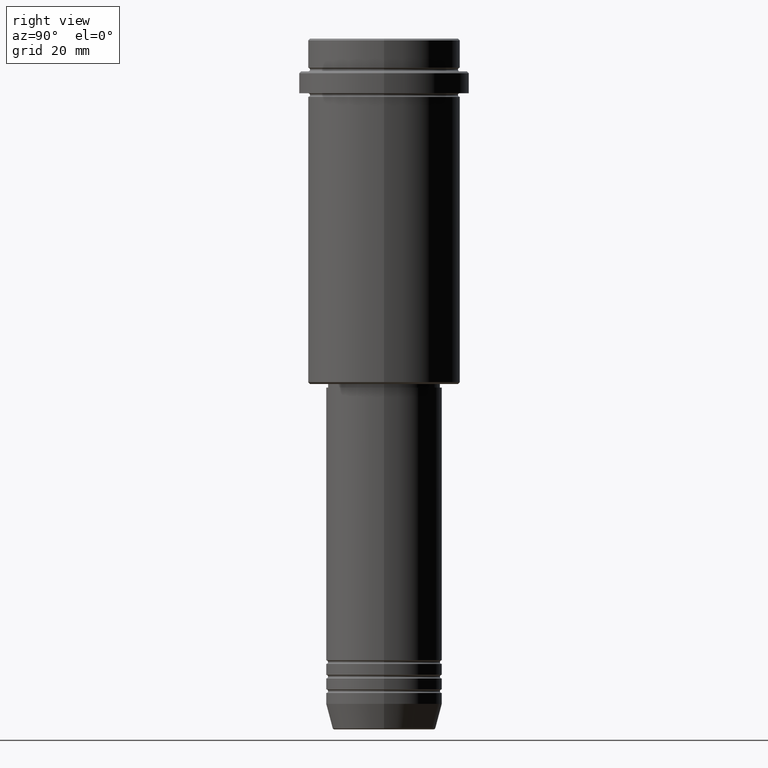
[diagram: clean part render]
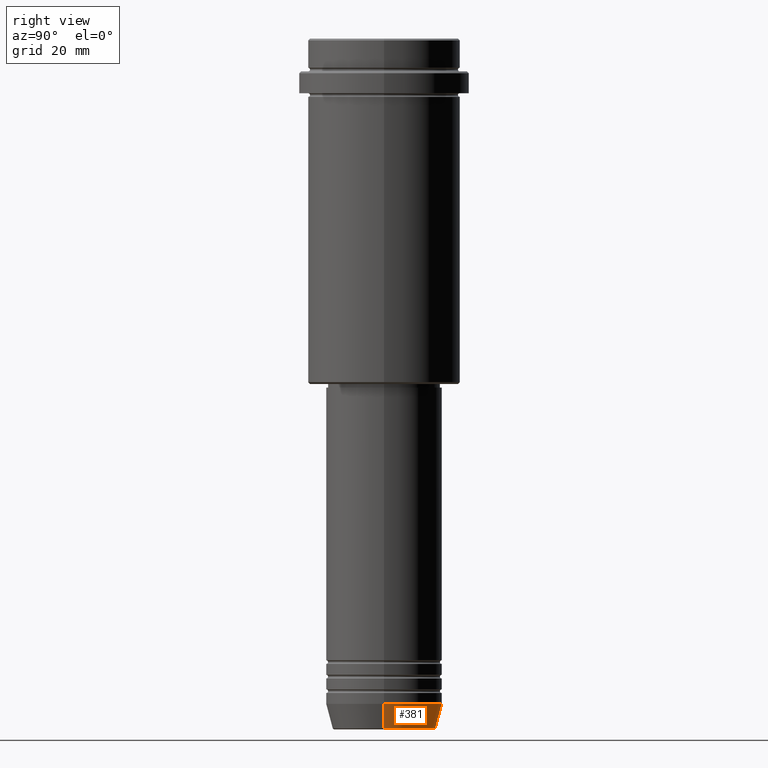
[diagram: same view with one face highlighted and labeled with its STEP entity id]
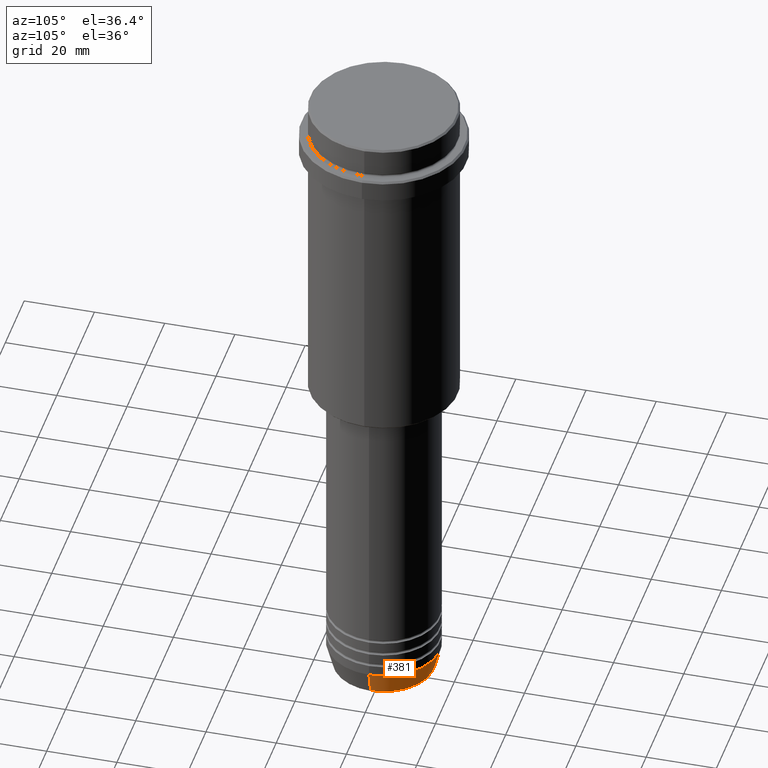
[diagram: same view with one face highlighted and labeled with its STEP entity id]
A machine part, right view. The second image highlights one B-rep face of the part: STEP entity #381.
A second angle (auxiliary view) of the same face is appended — the face is thin or edge-on in the first view.
In plain terms, the highlighted conical surface has half-angle 15 deg.
Its self-contained STEP definition (entity closure, byte-faithful):
#47 = FACE_OUTER_BOUND ( 'NONE', #1137, .T. ) ;
#85 = CIRCLE ( 'NONE', #245, 16.00000000000000000 ) ;
#93 = EDGE_CURVE ( 'NONE', #328, #405, #311, .T. ) ;
#99 = CARTESIAN_POINT ( 'NONE',  ( 0.000000000000000000, 0.000000000000000000, -183.0000000000000000 ) ) ;
#220 = DIRECTION ( 'NONE',  ( 0.2588190451025213501, 0.000000000000000000, 0.9659258262890680902 ) ) ;
#245 = AXIS2_PLACEMENT_3D ( 'NONE', #99, #673, #551 ) ;
#311 = LINE ( 'NONE', #770, #658 ) ;
#328 = VERTEX_POINT ( 'NONE', #649 ) ;
#381 = ADVANCED_FACE ( 'NONE', ( #47 ), #1361, .T. ) ;
#405 = VERTEX_POINT ( 'NONE', #1188 ) ;
#442 = LINE ( 'NONE', #878, #864 ) ;
#467 = EDGE_CURVE ( 'NONE', #955, #812, #442, .T. ) ;
#471 = EDGE_CURVE ( 'NONE', #405, #812, #85, .T. ) ;
#515 = ORIENTED_EDGE ( 'NONE', *, *, #1268, .T. ) ;
#526 = DIRECTION ( 'NONE',  ( -0.000000000000000000, -0.000000000000000000, 1.000000000000000000 ) ) ;
#551 = DIRECTION ( 'NONE',  ( 1.000000000000000000, 0.000000000000000000, 0.000000000000000000 ) ) ;
#557 = DIRECTION ( 'NONE',  ( -0.2588190451025213501, 3.169619151431772337E-17, 0.9659258262890680902 ) ) ;
#649 = CARTESIAN_POINT ( 'NONE',  ( 14.22365507213718772, 0.000000000000000000, -189.6294095225512422 ) ) ;
#658 = VECTOR ( 'NONE', #220, 1000.000000000000000 ) ;
#673 = DIRECTION ( 'NONE',  ( -0.000000000000000000, -0.000000000000000000, 1.000000000000000000 ) ) ;
#751 = CARTESIAN_POINT ( 'NONE',  ( -16.00000000000000000, 1.959434878635765131E-15, -183.0000000000000000 ) ) ;
#770 = CARTESIAN_POINT ( 'NONE',  ( 16.00000000000000000, 0.000000000000000000, -183.0000000000000000 ) ) ;
#802 = CIRCLE ( 'NONE', #1172, 14.22365507213718772 ) ;
#812 = VERTEX_POINT ( 'NONE', #751 ) ;
#864 = VECTOR ( 'NONE', #557, 1000.000000000000000 ) ;
#878 = CARTESIAN_POINT ( 'NONE',  ( -16.00000000000000000, 1.959434878635765131E-15, -183.0000000000000000 ) ) ;
#955 = VERTEX_POINT ( 'NONE', #1003 ) ;
#960 = AXIS2_PLACEMENT_3D ( 'NONE', #1400, #526, #1383 ) ;
#1003 = CARTESIAN_POINT ( 'NONE',  ( -14.22365507213718772, 1.850665122131323337E-15, -189.6294095225512422 ) ) ;
#1018 = ORIENTED_EDGE ( 'NONE', *, *, #93, .F. ) ;
#1046 = ORIENTED_EDGE ( 'NONE', *, *, #467, .T. ) ;
#1064 = DIRECTION ( 'NONE',  ( -0.000000000000000000, -0.000000000000000000, 1.000000000000000000 ) ) ;
#1093 = DIRECTION ( 'NONE',  ( 1.000000000000000000, 0.000000000000000000, 0.000000000000000000 ) ) ;
#1137 = EDGE_LOOP ( 'NONE', ( #515, #1046, #1356, #1018 ) ) ;
#1172 = AXIS2_PLACEMENT_3D ( 'NONE', #1395, #1064, #1093 ) ;
#1188 = CARTESIAN_POINT ( 'NONE',  ( 16.00000000000000000, 0.000000000000000000, -183.0000000000000000 ) ) ;
#1268 = EDGE_CURVE ( 'NONE', #328, #955, #802, .T. ) ;
#1356 = ORIENTED_EDGE ( 'NONE', *, *, #471, .F. ) ;
#1361 = CONICAL_SURFACE ( 'NONE', #960, 16.00000000000000000, 0.2617993877991500740 ) ;
#1383 = DIRECTION ( 'NONE',  ( 1.000000000000000000, 0.000000000000000000, 0.000000000000000000 ) ) ;
#1395 = CARTESIAN_POINT ( 'NONE',  ( 0.000000000000000000, 0.000000000000000000, -189.6294095225512422 ) ) ;
#1400 = CARTESIAN_POINT ( 'NONE',  ( 0.000000000000000000, 0.000000000000000000, -183.0000000000000000 ) ) ;